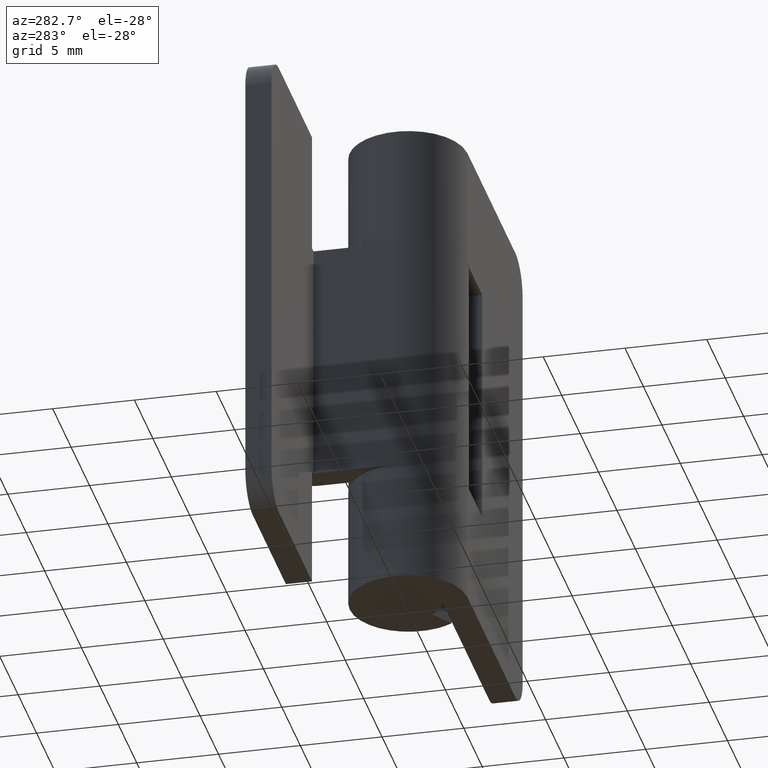
[diagram: clean part render]
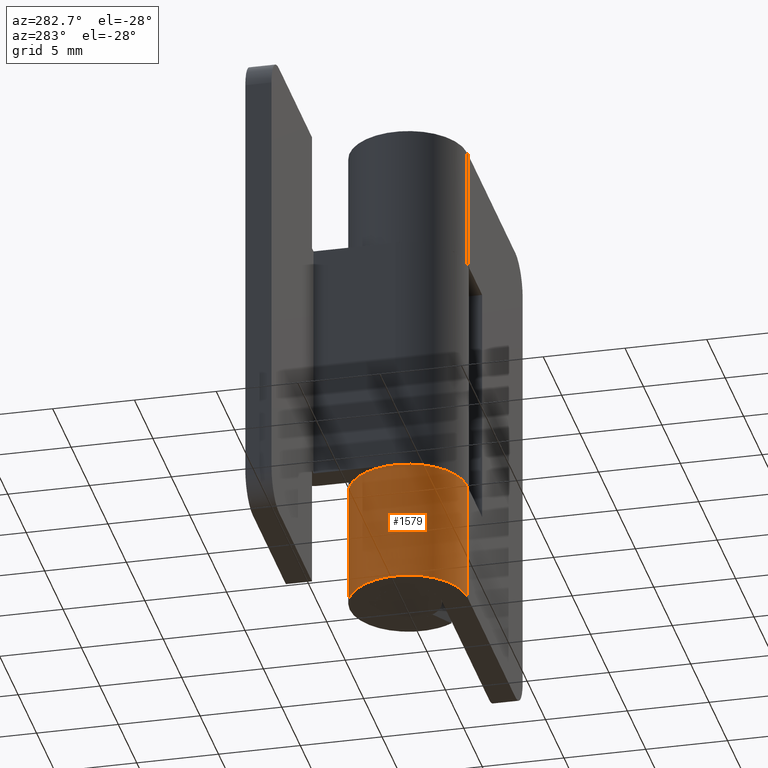
[diagram: same view with one face highlighted and labeled with its STEP entity id]
A machine part, auxiliary view. The second image highlights one B-rep face of the part: STEP entity #1579.
In plain terms, the highlighted face is a freeform B-spline surface patch.
Its self-contained STEP definition (entity closure, byte-faithful):
#1100=CARTESIAN_POINT('',(-0.000000188495562,-3.599998000000000,7.500000000000000));
#1101=VERTEX_POINT('',#1100);
#1142=CARTESIAN_POINT('',(3.026136150274790,-1.950000000000000,7.500000000000000));
#1143=VERTEX_POINT('',#1142);
#1149=CARTESIAN_POINT('',(-0.000000188495562,-3.599998000000000,7.500000000000000));
#1150=CARTESIAN_POINT('',(-2.797445952492427,-3.599996428365868,7.500000000000001));
#1151=CARTESIAN_POINT('',(-3.488445681127200,-0.889236386657091,7.500000000000000));
#1152=CARTESIAN_POINT('',(-4.179445409761975,1.821523655051687,7.500000000000001));
#1153=CARTESIAN_POINT('',(-1.723368711214482,3.160697170973536,7.500000000000000));
#1154=CARTESIAN_POINT('',(0.732707987333009,4.499870686895384,7.500000000000001));
#1155=CARTESIAN_POINT('',(2.637063629886369,2.450691819043219,7.500000000000000));
#1156=CARTESIAN_POINT('',(4.541419272439727,0.401512951191053,7.500000000000001));
#1157=CARTESIAN_POINT('',(3.026136150274790,-1.950000000000000,7.500000000000000));
#1165=(BOUNDED_CURVE()B_SPLINE_CURVE(2,(#1149,#1150,#1151,#1152,#1153,#1154,#1155,#1156,#1157),.UNSPECIFIED.,.F.,.U.)B_SPLINE_CURVE_WITH_KNOTS((3,2,2,2,3),(0.0,0.250000000000000,0.500000000000000,0.750000000000000,1.0),.UNSPECIFIED.)CURVE()GEOMETRIC_REPRESENTATION_ITEM()RATIONAL_B_SPLINE_CURVE((1.0,0.789623643958973,1.0,0.789623643958973,1.0,0.789623643958973,1.0,0.789623643958973,1.0))REPRESENTATION_ITEM(''));
#1166=EDGE_CURVE('',#1101,#1143,#1165,.T.);
#1282=CARTESIAN_POINT('',(-0.000000188495562,-3.600000000000000,0.0));
#1283=VERTEX_POINT('',#1282);
#1289=CARTESIAN_POINT('',(3.026136150274790,-1.950000000000000,0.0));
#1290=VERTEX_POINT('',#1289);
#1291=CARTESIAN_POINT('',(-0.000000188495561,-3.599999999999995,0.0));
#1292=CARTESIAN_POINT('',(-2.797445952492526,-3.599999853526076,0.0));
#1293=CARTESIAN_POINT('',(-3.488445681127340,-0.889239410858521,0.0));
#1294=CARTESIAN_POINT('',(-4.179445409762153,1.821521031809033,0.0));
#1295=CARTESIAN_POINT('',(-1.723368711214574,3.160696170973512,0.0));
#1296=CARTESIAN_POINT('',(0.732707987333006,4.499871310137992,0.0));
#1297=CARTESIAN_POINT('',(2.637063629886417,2.450692843244595,0.0));
#1298=CARTESIAN_POINT('',(4.541419272439828,0.401514376351199,0.0));
#1299=CARTESIAN_POINT('',(3.026136150274790,-1.950000000000000,0.0));
#1307=(BOUNDED_CURVE()B_SPLINE_CURVE(2,(#1291,#1292,#1293,#1294,#1295,#1296,#1297,#1298,#1299),.UNSPECIFIED.,.F.,.U.)B_SPLINE_CURVE_WITH_KNOTS((3,2,2,2,3),(0.0,0.250000000000000,0.500000000000000,0.750000000000000,1.0),.UNSPECIFIED.)CURVE()GEOMETRIC_REPRESENTATION_ITEM()RATIONAL_B_SPLINE_CURVE((1.0,0.789623643958971,1.0,0.789623643958971,1.0,0.789623643958971,1.0,0.789623643958971,1.0))REPRESENTATION_ITEM(''));
#1308=EDGE_CURVE('',#1283,#1290,#1307,.T.);
#1539=CARTESIAN_POINT('',(-0.000000188495562,-3.599998000000000,7.500000000000000));
#1540=CARTESIAN_POINT('',(-0.000000188495562,-3.600000000000000,0.0));
#1541=QUASI_UNIFORM_CURVE('',1,(#1539,#1540),.UNSPECIFIED.,.F.,.U.);
#1542=EDGE_CURVE('',#1101,#1283,#1541,.T.);
#1547=CARTESIAN_POINT('',(2.974054119795179,-2.028546793280675,7.687500000000001));
#1548=CARTESIAN_POINT('',(2.974054119795179,-2.028546793280675,-0.192187500000000));
#1549=CARTESIAN_POINT('',(5.494053900480766,1.666026955008472,7.687500000000000));
#1550=CARTESIAN_POINT('',(5.494053900480766,1.666026955008472,-0.192187500000000));
#1551=CARTESIAN_POINT('',(1.346476612783839,3.338712436138541,7.687500000000001));
#1552=CARTESIAN_POINT('',(1.346476612783839,3.338712436138541,-0.192187500000000));
#1553=CARTESIAN_POINT('',(-2.801100674913086,5.011397917268609,7.687500000000000));
#1554=CARTESIAN_POINT('',(-2.801100674913086,5.011397917268609,-0.192187500000000));
#1555=CARTESIAN_POINT('',(-3.549265622544154,0.602257038668912,7.687500000000001));
#1556=CARTESIAN_POINT('',(-3.549265622544154,0.602257038668912,-0.192187500000000));
#1557=CARTESIAN_POINT('',(-4.297430570175223,-3.806883839930786,7.687500000000000));
#1558=CARTESIAN_POINT('',(-4.297430570175223,-3.806883839930786,-0.192187500000000));
#1559=CARTESIAN_POINT('',(0.169760946053471,-3.595995164234098,7.687500000000001));
#1560=CARTESIAN_POINT('',(0.169760946053471,-3.595995164234098,-0.192187500000000));
#1568=(BOUNDED_SURFACE()B_SPLINE_SURFACE(1,2,((#1547,#1549,#1551,#1553,#1555,#1557,#1559),(#1548,#1550,#1552,#1554,#1556,#1558,#1560)),.UNSPECIFIED.,.F.,.F.,.U.)B_SPLINE_SURFACE_WITH_KNOTS((2,2),(3,2,2,3),(0.0,7.879687500000001),(0.0,6.894174354837887,13.788348709675770,20.682523064513660),.UNSPECIFIED.)GEOMETRIC_REPRESENTATION_ITEM()RATIONAL_B_SPLINE_SURFACE(((1.0,0.627057105746662,1.0,0.627057105746662,1.0,0.627057105746662,1.0),(1.0,0.627057105746662,1.0,0.627057105746662,1.0,0.627057105746662,1.0)))REPRESENTATION_ITEM('')SURFACE());
#1569=ORIENTED_EDGE('',*,*,#1542,.F.);
#1570=ORIENTED_EDGE('',*,*,#1166,.T.);
#1571=CARTESIAN_POINT('',(3.026136150274790,-1.950000000000000,7.500000000000000));
#1572=CARTESIAN_POINT('',(3.026136150274790,-1.950000000000000,0.0));
#1573=QUASI_UNIFORM_CURVE('',1,(#1571,#1572),.UNSPECIFIED.,.F.,.U.);
#1574=EDGE_CURVE('',#1143,#1290,#1573,.T.);
#1575=ORIENTED_EDGE('',*,*,#1574,.T.);
#1576=ORIENTED_EDGE('',*,*,#1308,.F.);
#1577=EDGE_LOOP('',(#1569,#1570,#1575,#1576));
#1578=FACE_OUTER_BOUND('',#1577,.T.);
#1579=ADVANCED_FACE('',(#1578),#1568,.T.);